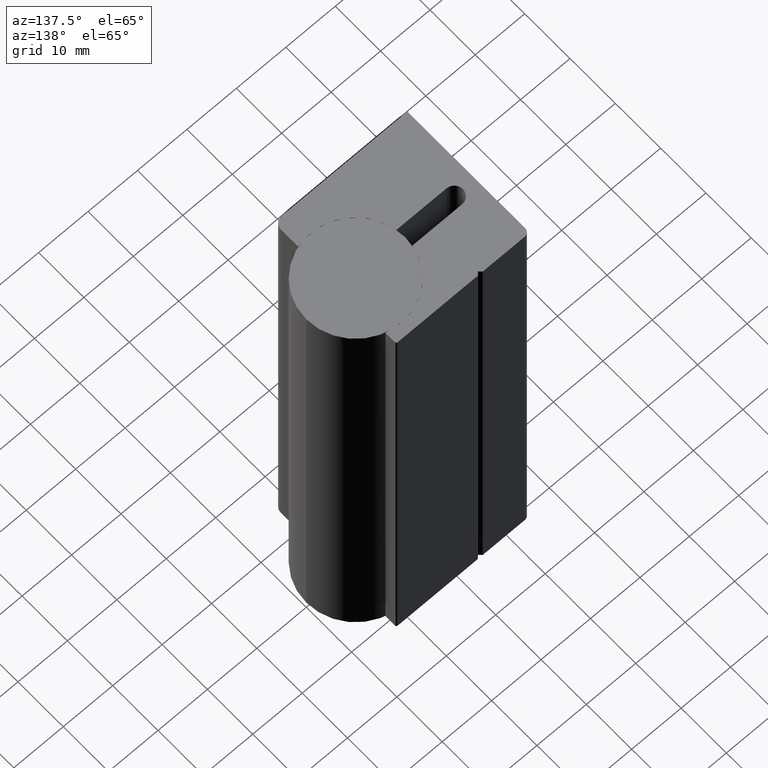
[diagram: clean part render]
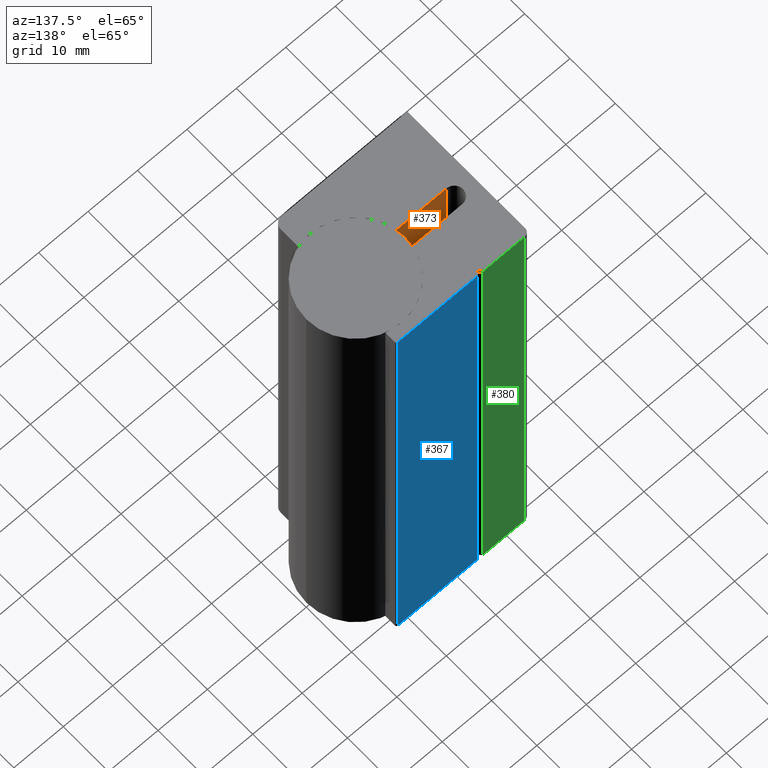
[diagram: same view with three faces highlighted in distinct colors, each labeled with its STEP entity id]
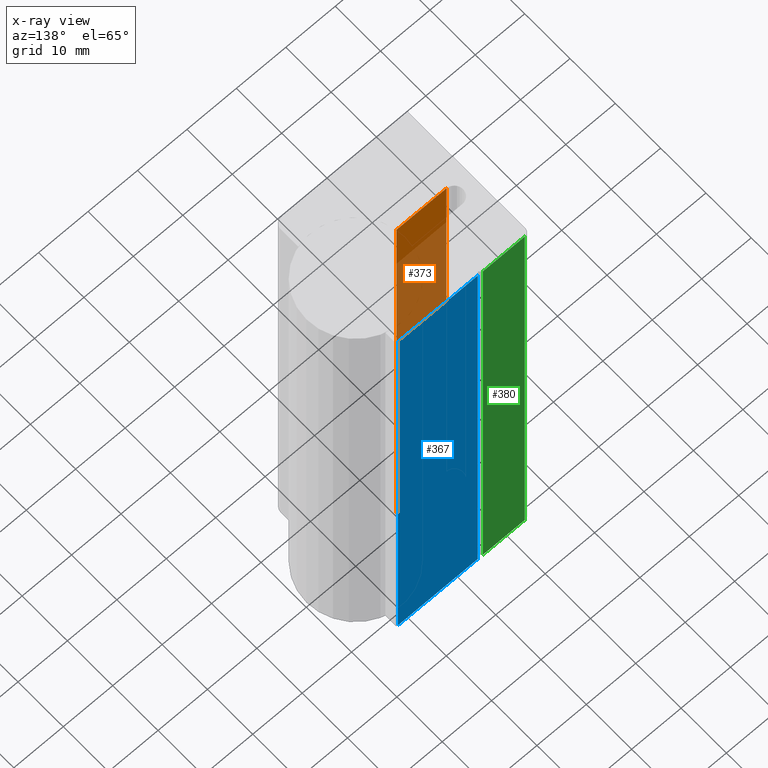
[diagram: x-ray of the same camera — body ghosted, the three highlighted faces saturated]
A machine part, auxiliary view with three faces highlighted in distinct colors.
The next image is the same camera in x-ray (body ghosted, the three faces saturated) — at least one of them is partly hidden behind the body in this view.
Their STEP definitions:

[orange] entity #373 — the highlighted planar face has unit normal (0, 1, 0).
#56=FACE_OUTER_BOUND('',#77,.T.);
#77=EDGE_LOOP('',(#281,#282,#283,#284));
#108=LINE('',#659,#145);
#109=LINE('',#662,#146);
#110=LINE('',#664,#147);
#111=LINE('',#665,#148);
#145=VECTOR('',#540,10.);
#146=VECTOR('',#543,10.);
#147=VECTOR('',#544,10.);
#148=VECTOR('',#545,10.);
#180=VERTEX_POINT('',#655);
#181=VERTEX_POINT('',#657);
#182=VERTEX_POINT('',#661);
#183=VERTEX_POINT('',#663);
#222=EDGE_CURVE('',#180,#181,#108,.T.);
#223=EDGE_CURVE('',#182,#180,#109,.T.);
#224=EDGE_CURVE('',#183,#181,#110,.T.);
#225=EDGE_CURVE('',#182,#183,#111,.T.);
#281=ORIENTED_EDGE('',*,*,#223,.T.);
#282=ORIENTED_EDGE('',*,*,#222,.T.);
#283=ORIENTED_EDGE('',*,*,#224,.F.);
#284=ORIENTED_EDGE('',*,*,#225,.F.);
#356=PLANE('',#466);
#373=ADVANCED_FACE('',(#56),#356,.T.);
#466=AXIS2_PLACEMENT_3D('',#660,#541,#542);
#540=DIRECTION('',(0.,0.,1.));
#541=DIRECTION('center_axis',(2.7469030593001E-17,1.,0.));
#542=DIRECTION('ref_axis',(-1.,2.7469030593001E-17,0.));
#543=DIRECTION('',(-1.,2.7469030593001E-17,0.));
#544=DIRECTION('',(-1.,2.7469030593001E-17,0.));
#545=DIRECTION('',(0.,0.,1.));
#655=CARTESIAN_POINT('',(-19.9499999999613,-1.75000000000001,0.));
#657=CARTESIAN_POINT('',(-19.9499999999613,-1.75000000000001,100.));
#659=CARTESIAN_POINT('',(-19.9499999999613,-1.75000000000001,0.));
#660=CARTESIAN_POINT('Origin',(-9.84568433375761,-1.75000000000001,0.));
#661=CARTESIAN_POINT('',(-9.84568433375761,-1.75000000000001,0.));
#662=CARTESIAN_POINT('',(-9.84568433375761,-1.75000000000001,0.));
#663=CARTESIAN_POINT('',(-9.84568433375761,-1.75000000000001,100.));
#664=CARTESIAN_POINT('',(-9.84568433375761,-1.75000000000001,100.));
#665=CARTESIAN_POINT('',(-9.84568433375761,-1.75000000000001,0.));

[blue] entity #367 — the highlighted planar face has unit normal (-0, 1, 0).
#50=FACE_OUTER_BOUND('',#71,.T.);
#71=EDGE_LOOP('',(#257,#258,#259,#260));
#96=LINE('',#623,#133);
#97=LINE('',#626,#134);
#98=LINE('',#628,#135);
#99=LINE('',#629,#136);
#133=VECTOR('',#504,10.);
#134=VECTOR('',#507,10.);
#135=VECTOR('',#508,10.);
#136=VECTOR('',#509,10.);
#168=VERTEX_POINT('',#619);
#169=VERTEX_POINT('',#621);
#170=VERTEX_POINT('',#625);
#171=VERTEX_POINT('',#627);
#204=EDGE_CURVE('',#168,#169,#96,.T.);
#205=EDGE_CURVE('',#170,#168,#97,.T.);
#206=EDGE_CURVE('',#171,#169,#98,.T.);
#207=EDGE_CURVE('',#170,#171,#99,.T.);
#257=ORIENTED_EDGE('',*,*,#205,.T.);
#258=ORIENTED_EDGE('',*,*,#204,.T.);
#259=ORIENTED_EDGE('',*,*,#206,.F.);
#260=ORIENTED_EDGE('',*,*,#207,.F.);
#353=PLANE('',#454);
#367=ADVANCED_FACE('',(#50),#353,.T.);
#454=AXIS2_PLACEMENT_3D('',#624,#505,#506);
#504=DIRECTION('',(0.,0.,1.));
#505=DIRECTION('center_axis',(-6.61720335588575E-12,1.,0.));
#506=DIRECTION('ref_axis',(-1.,-6.61720335588575E-12,0.));
#507=DIRECTION('',(-1.,-6.61720335588575E-12,0.));
#508=DIRECTION('',(-1.,-6.61720335588575E-12,0.));
#509=DIRECTION('',(0.,0.,1.));
#619=CARTESIAN_POINT('',(-13.6999999999615,11.9999999999197,0.));
#621=CARTESIAN_POINT('',(-13.6999999999615,11.9999999999197,100.));
#623=CARTESIAN_POINT('',(-13.6999999999615,11.9999999999197,0.));
#624=CARTESIAN_POINT('Origin',(2.50000000009254,12.0000000000269,0.));
#625=CARTESIAN_POINT('',(2.50000000009254,12.0000000000269,0.));
#626=CARTESIAN_POINT('',(2.50000000009254,12.0000000000269,0.));
#627=CARTESIAN_POINT('',(2.50000000009254,12.0000000000269,100.));
#628=CARTESIAN_POINT('',(2.50000000009254,12.0000000000269,100.));
#629=CARTESIAN_POINT('',(2.50000000009254,12.0000000000269,0.));

[green] entity #380 — the highlighted planar face has unit normal (-0, 1, 0).
#63=FACE_OUTER_BOUND('',#84,.T.);
#84=EDGE_LOOP('',(#309,#310,#311,#312));
#91=LINE('',#614,#128);
#123=LINE('',#701,#160);
#124=LINE('',#703,#161);
#125=LINE('',#704,#162);
#128=VECTOR('',#497,10.);
#160=VECTOR('',#581,10.);
#161=VECTOR('',#584,10.);
#162=VECTOR('',#585,10.);
#165=VERTEX_POINT('',#611);
#166=VERTEX_POINT('',#613);
#194=VERTEX_POINT('',#697);
#195=VERTEX_POINT('',#699);
#199=EDGE_CURVE('',#165,#166,#91,.T.);
#243=EDGE_CURVE('',#194,#195,#123,.T.);
#244=EDGE_CURVE('',#165,#194,#124,.T.);
#245=EDGE_CURVE('',#166,#195,#125,.T.);
#309=ORIENTED_EDGE('',*,*,#244,.T.);
#310=ORIENTED_EDGE('',*,*,#243,.T.);
#311=ORIENTED_EDGE('',*,*,#245,.F.);
#312=ORIENTED_EDGE('',*,*,#199,.F.);
#360=PLANE('',#479);
#380=ADVANCED_FACE('',(#63),#360,.T.);
#479=AXIS2_PLACEMENT_3D('',#702,#582,#583);
#497=DIRECTION('',(0.,0.,1.));
#581=DIRECTION('',(0.,0.,1.));
#582=DIRECTION('center_axis',(-2.6122894697229E-16,1.,0.));
#583=DIRECTION('ref_axis',(-1.,-2.6122894697229E-16,0.));
#584=DIRECTION('',(-1.,-2.6122894697229E-16,0.));
#585=DIRECTION('',(-1.,-2.6122894697229E-16,0.));
#611=CARTESIAN_POINT('',(-14.6999999999615,12.0000000000269,0.));
#613=CARTESIAN_POINT('',(-14.6999999999615,12.0000000000269,100.));
#614=CARTESIAN_POINT('',(-14.6999999999615,12.0000000000269,0.));
#697=CARTESIAN_POINT('',(-23.1999999999073,12.0000000000269,0.));
#699=CARTESIAN_POINT('',(-23.1999999999073,12.0000000000269,100.));
#701=CARTESIAN_POINT('',(-23.1999999999073,12.0000000000269,0.));
#702=CARTESIAN_POINT('Origin',(-14.6999999999615,12.0000000000269,0.));
#703=CARTESIAN_POINT('',(-14.6999999999615,12.0000000000269,0.));
#704=CARTESIAN_POINT('',(-14.6999999999615,12.0000000000269,100.));